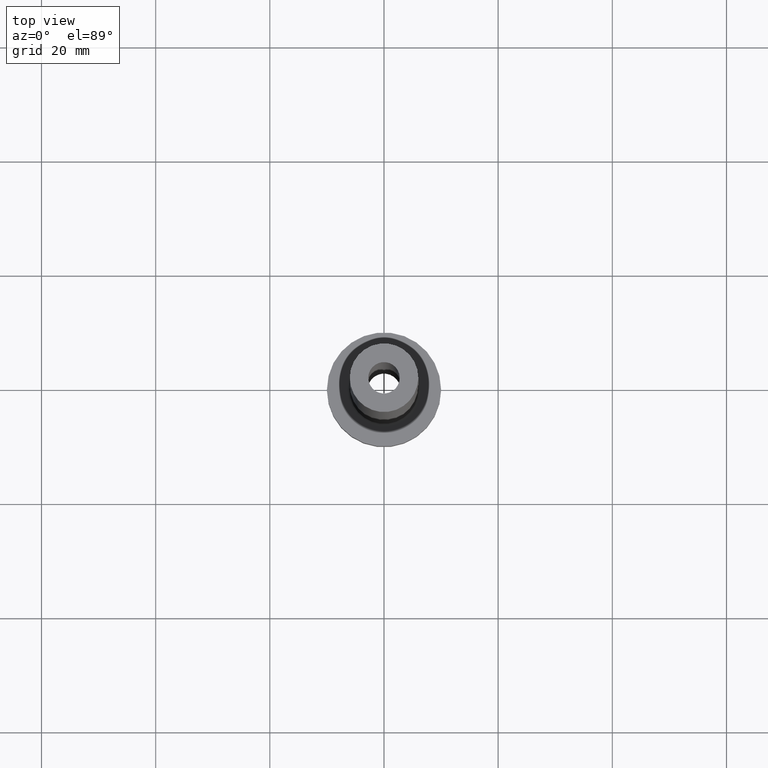
[diagram: clean part render]
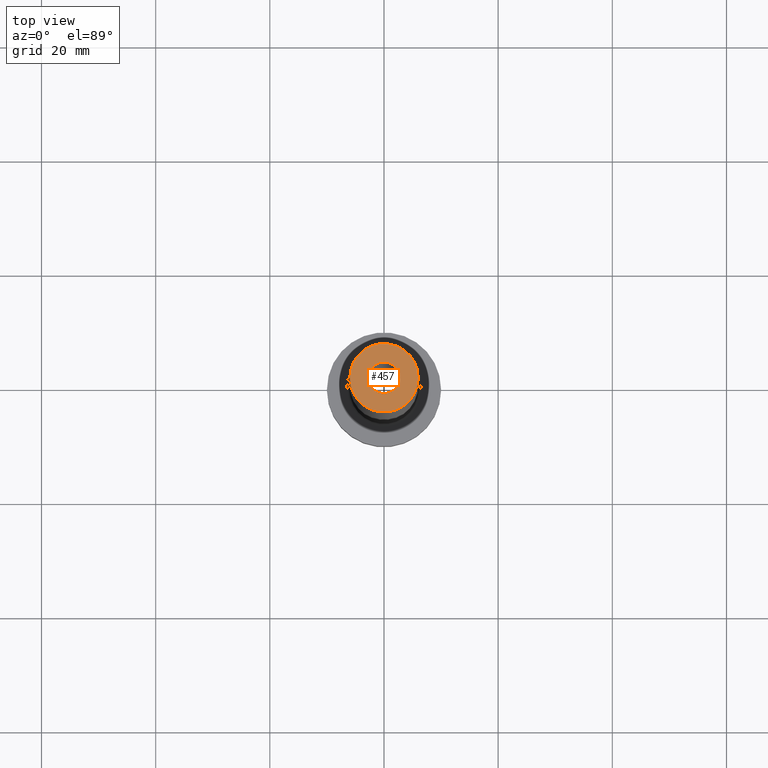
[diagram: same view with one face highlighted and labeled with its STEP entity id]
A machine part, top view. The second image highlights one B-rep face of the part: STEP entity #457.
In plain terms, the highlighted planar face has unit normal (0, 0, 1).
Its self-contained STEP definition (entity closure, byte-faithful):
#30 = DIRECTION ( 'NONE',  ( 1.000000000000000000, 0.000000000000000000, 0.000000000000000000 ) ) ;
#32 = FACE_BOUND ( 'NONE', #309, .T. ) ;
#34 = AXIS2_PLACEMENT_3D ( 'NONE', #303, #88, #30 ) ;
#42 = DIRECTION ( 'NONE',  ( 1.000000000000000000, 0.000000000000000000, -0.000000000000000000 ) ) ;
#43 = VERTEX_POINT ( 'NONE', #126 ) ;
#58 = DIRECTION ( 'NONE',  ( 0.000000000000000000, 0.000000000000000000, 1.000000000000000000 ) ) ;
#71 = DIRECTION ( 'NONE',  ( 1.000000000000000000, 0.000000000000000000, 0.000000000000000000 ) ) ;
#75 = EDGE_CURVE ( 'NONE', #152, #160, #253, .T. ) ;
#83 = EDGE_CURVE ( 'NONE', #43, #434, #222, .T. ) ;
#88 = DIRECTION ( 'NONE',  ( 0.000000000000000000, 0.000000000000000000, 1.000000000000000000 ) ) ;
#126 = CARTESIAN_POINT ( 'NONE',  ( -2.750000000000000000, 0.000000000000000000, 125.0000000000000000 ) ) ;
#130 = CARTESIAN_POINT ( 'NONE',  ( -6.000000000000000888, 0.000000000000000000, 125.0000000000000000 ) ) ;
#141 = AXIS2_PLACEMENT_3D ( 'NONE', #183, #58, #306 ) ;
#152 = VERTEX_POINT ( 'NONE', #395 ) ;
#160 = VERTEX_POINT ( 'NONE', #130 ) ;
#165 = AXIS2_PLACEMENT_3D ( 'NONE', #362, #324, #71 ) ;
#183 = CARTESIAN_POINT ( 'NONE',  ( 0.000000000000000000, 0.000000000000000000, 125.0000000000000000 ) ) ;
#186 = DIRECTION ( 'NONE',  ( 0.000000000000000000, 0.000000000000000000, 1.000000000000000000 ) ) ;
#209 = ORIENTED_EDGE ( 'NONE', *, *, #234, .T. ) ;
#216 = FACE_OUTER_BOUND ( 'NONE', #283, .T. ) ;
#222 = CIRCLE ( 'NONE', #141, 2.750000000000000000 ) ;
#234 = EDGE_CURVE ( 'NONE', #160, #152, #237, .T. ) ;
#237 = CIRCLE ( 'NONE', #34, 6.000000000000000888 ) ;
#253 = CIRCLE ( 'NONE', #165, 6.000000000000000888 ) ;
#273 = ORIENTED_EDGE ( 'NONE', *, *, #311, .F. ) ;
#283 = EDGE_LOOP ( 'NONE', ( #209, #348 ) ) ;
#291 = PLANE ( 'NONE',  #294 ) ;
#294 = AXIS2_PLACEMENT_3D ( 'NONE', #436, #186, #42 ) ;
#303 = CARTESIAN_POINT ( 'NONE',  ( 0.000000000000000000, 0.000000000000000000, 125.0000000000000000 ) ) ;
#306 = DIRECTION ( 'NONE',  ( 1.000000000000000000, 0.000000000000000000, 0.000000000000000000 ) ) ;
#309 = EDGE_LOOP ( 'NONE', ( #333, #273 ) ) ;
#311 = EDGE_CURVE ( 'NONE', #434, #43, #332, .T. ) ;
#318 = CARTESIAN_POINT ( 'NONE',  ( 2.750000000000000000, 3.367778697655220519E-16, 125.0000000000000000 ) ) ;
#324 = DIRECTION ( 'NONE',  ( 0.000000000000000000, 0.000000000000000000, 1.000000000000000000 ) ) ;
#332 = CIRCLE ( 'NONE', #420, 2.750000000000000000 ) ;
#333 = ORIENTED_EDGE ( 'NONE', *, *, #83, .F. ) ;
#348 = ORIENTED_EDGE ( 'NONE', *, *, #75, .T. ) ;
#362 = CARTESIAN_POINT ( 'NONE',  ( 0.000000000000000000, 0.000000000000000000, 125.0000000000000000 ) ) ;
#395 = CARTESIAN_POINT ( 'NONE',  ( 6.000000000000000888, 7.347880794884120722E-16, 125.0000000000000000 ) ) ;
#419 = DIRECTION ( 'NONE',  ( 0.000000000000000000, 0.000000000000000000, 1.000000000000000000 ) ) ;
#420 = AXIS2_PLACEMENT_3D ( 'NONE', #456, #419, #451 ) ;
#434 = VERTEX_POINT ( 'NONE', #318 ) ;
#436 = CARTESIAN_POINT ( 'NONE',  ( 0.000000000000000000, 0.000000000000000000, 125.0000000000000000 ) ) ;
#451 = DIRECTION ( 'NONE',  ( 1.000000000000000000, 0.000000000000000000, 0.000000000000000000 ) ) ;
#456 = CARTESIAN_POINT ( 'NONE',  ( 0.000000000000000000, 0.000000000000000000, 125.0000000000000000 ) ) ;
#457 = ADVANCED_FACE ( 'NONE', ( #32, #216 ), #291, .T. ) ;